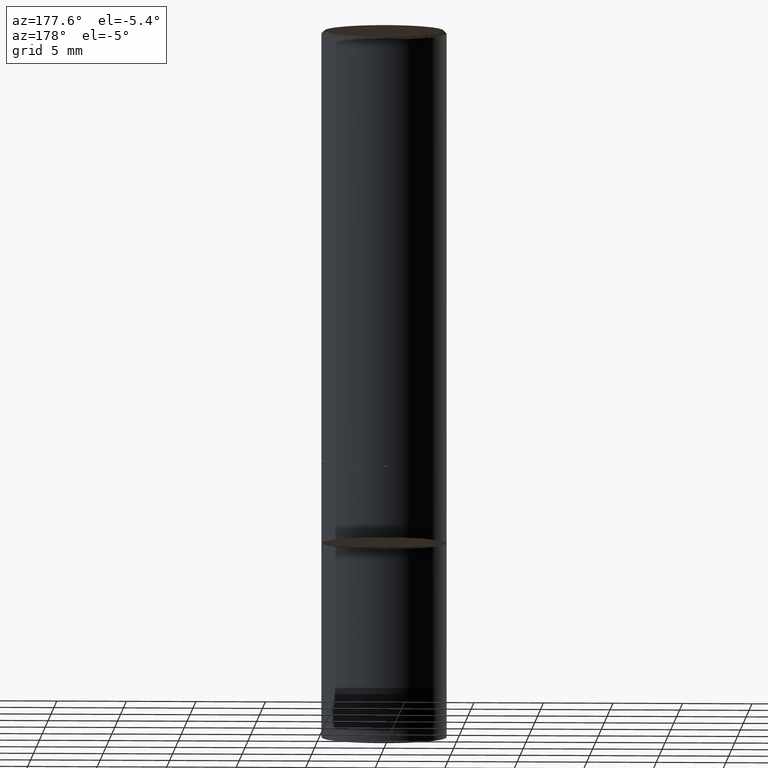
[diagram: clean part render]
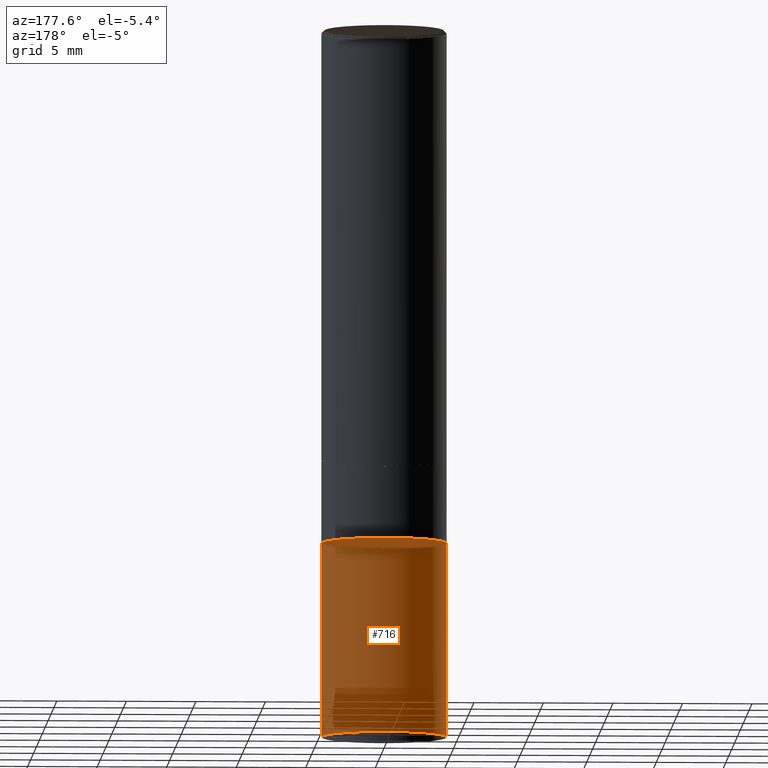
[diagram: same view with one face highlighted and labeled with its STEP entity id]
A machine part, auxiliary view. The second image highlights one B-rep face of the part: STEP entity #716.
In plain terms, the highlighted face is a freeform B-spline surface patch.
Its self-contained STEP definition (entity closure, byte-faithful):
#634=CARTESIAN_POINT('',(4.5,0.0,-20.0));
#635=CARTESIAN_POINT('',(4.5,4.5,-20.0));
#636=CARTESIAN_POINT('',(0.0,4.5,-20.0));
#637=CARTESIAN_POINT('',(-4.5,4.5,-20.0));
#638=CARTESIAN_POINT('',(-4.5,0.0,-20.0));
#639=CARTESIAN_POINT('',(4.5,0.0,-6.0));
#640=CARTESIAN_POINT('',(4.5,4.5,-6.0));
#641=CARTESIAN_POINT('',(0.0,4.5,-6.0));
#642=CARTESIAN_POINT('',(-4.5,4.5,-6.0));
#643=CARTESIAN_POINT('',(-4.5,0.0,-6.0));
#697=(
BOUNDED_SURFACE()
B_SPLINE_SURFACE(1,2,(
(#634,#635,#636,#637,#638),
(#639,#640,#641,#642,#643)
), .UNSPECIFIED.,.F.,.F.,.F.)
B_SPLINE_SURFACE_WITH_KNOTS((2,2),(3,2,3),(
0.0,1.0),(
0.0,0.5,1.0), .UNSPECIFIED.)
GEOMETRIC_REPRESENTATION_ITEM()
RATIONAL_B_SPLINE_SURFACE(((1.0,0.707106781187,1.0,0.707106781187,1.0),
(1.0,0.707106781187,1.0,0.707106781187,1.0)
))
REPRESENTATION_ITEM('')
SURFACE()
);
#698=(
BOUNDED_CURVE()
B_SPLINE_CURVE(2,(#638,#637,#636,#635,#634),.UNSPECIFIED.,.F.,.F.)
B_SPLINE_CURVE_WITH_KNOTS((3,2,3),
(0.0,0.5,1.0),.UNSPECIFIED.)
CURVE()
GEOMETRIC_REPRESENTATION_ITEM()
RATIONAL_B_SPLINE_CURVE((1.0,0.707106781187,1.0,0.707106781187,1.0))
REPRESENTATION_ITEM('')
);
#699=(
BOUNDED_CURVE()
B_SPLINE_CURVE(1,(#634,#639),.UNSPECIFIED.,.F.,.F.)
B_SPLINE_CURVE_WITH_KNOTS((2,2),
(0.0,1.0),.UNSPECIFIED.)
CURVE()
GEOMETRIC_REPRESENTATION_ITEM()
RATIONAL_B_SPLINE_CURVE((1.0,1.0))
REPRESENTATION_ITEM('')
);
#700=(
BOUNDED_CURVE()
B_SPLINE_CURVE(2,(#639,#640,#641,#642,#643),.UNSPECIFIED.,.F.,.F.)
B_SPLINE_CURVE_WITH_KNOTS((3,2,3),
(0.0,0.5,1.0),.UNSPECIFIED.)
CURVE()
GEOMETRIC_REPRESENTATION_ITEM()
RATIONAL_B_SPLINE_CURVE((1.0,0.707106781187,1.0,0.707106781187,1.0))
REPRESENTATION_ITEM('')
);
#701=(
BOUNDED_CURVE()
B_SPLINE_CURVE(1,(#643,#638),.UNSPECIFIED.,.F.,.F.)
B_SPLINE_CURVE_WITH_KNOTS((2,2),
(0.0,1.0),.UNSPECIFIED.)
CURVE()
GEOMETRIC_REPRESENTATION_ITEM()
RATIONAL_B_SPLINE_CURVE((1.0,1.0))
REPRESENTATION_ITEM('')
);
#702=VERTEX_POINT('',#634);
#703=VERTEX_POINT('',#638);
#704=VERTEX_POINT('',#639);
#705=VERTEX_POINT('',#643);
#706=EDGE_CURVE('',#703,#702,#698,.T.);
#707=EDGE_CURVE('',#702,#704,#699,.T.);
#708=EDGE_CURVE('',#704,#705,#700,.T.);
#709=EDGE_CURVE('',#705,#703,#701,.T.);
#710=ORIENTED_EDGE('',*,*,#706,.T.);
#711=ORIENTED_EDGE('',*,*,#707,.T.);
#712=ORIENTED_EDGE('',*,*,#708,.T.);
#713=ORIENTED_EDGE('',*,*,#709,.T.);
#714=EDGE_LOOP('',(#710,#711,#712,#713));
#715=FACE_OUTER_BOUND('',#714,.T.);
#716=ADVANCED_FACE('',(#715),#697,.T.);